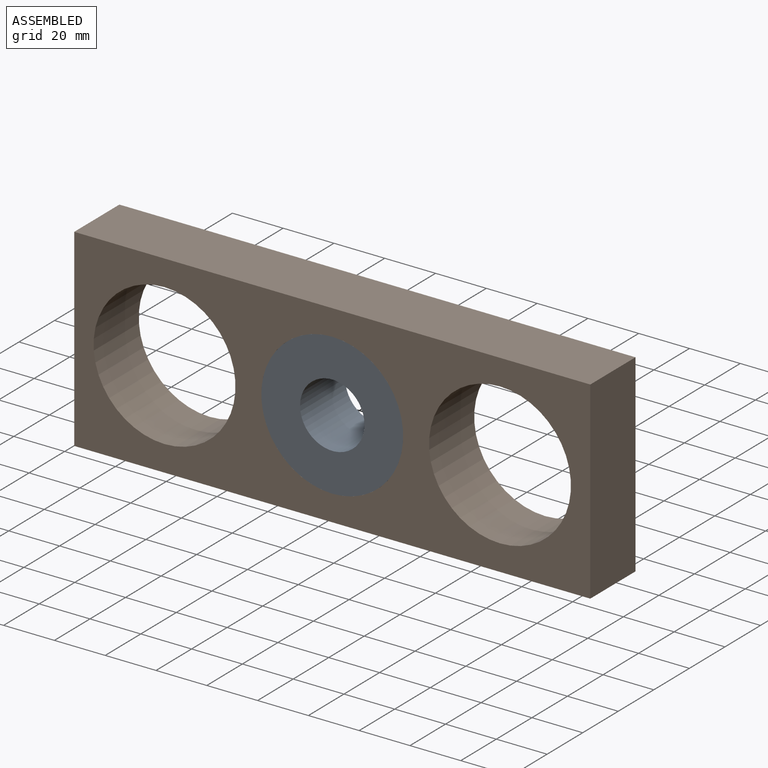
[diagram: assembled view]
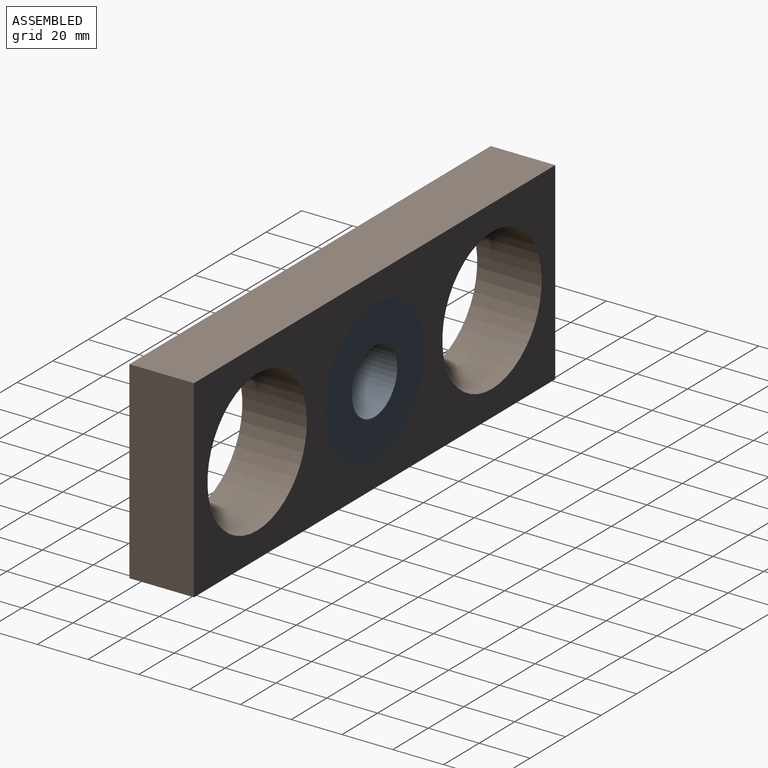
[diagram: assembled view, second angle]
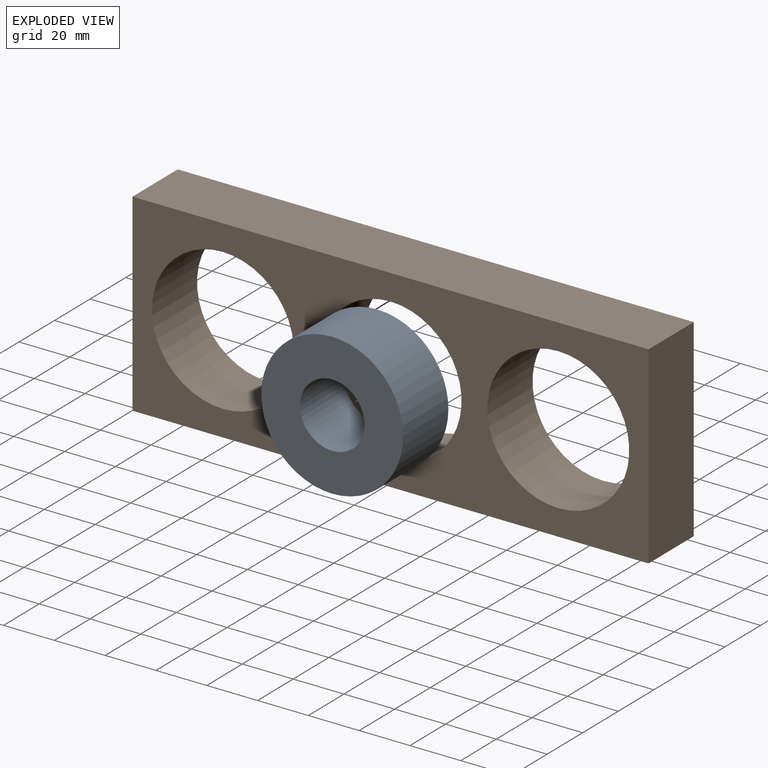
[diagram: exploded view]
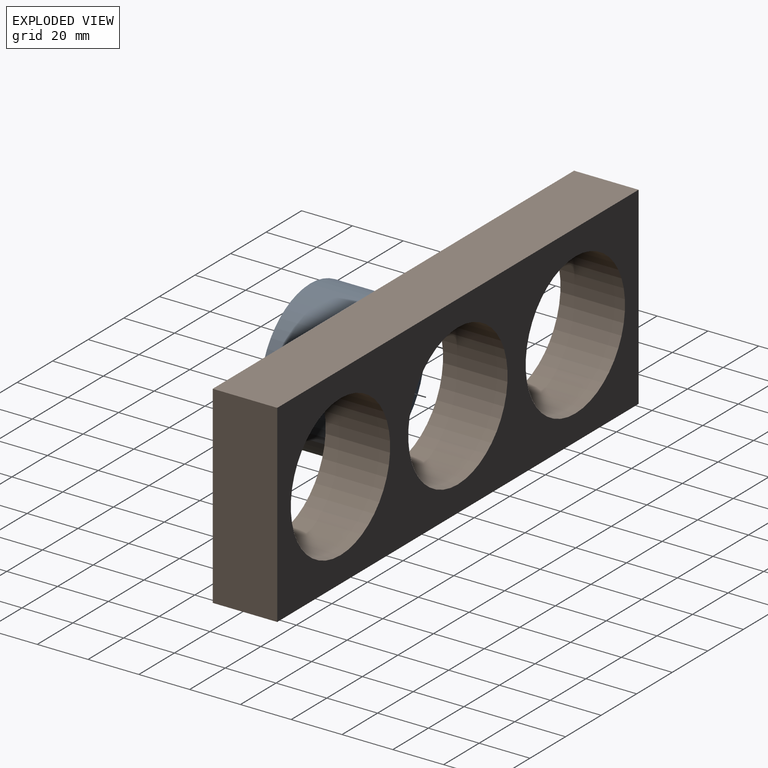
[diagram: exploded view, second angle]
ASSEMBLY  parts=2 mates=2
PART A: 4 faces, bbox 25.4x55.9x55.9 mm
  f0: cylinder r=12.7mm len=25.4mm, axis (-1,0,0), area 2026.8mm2, adj f1,f3
  f1: plane 55.88x55.88mm, normal (1,0,0), area 1945.8mm2, adj f0,f2
  f2: cylinder r=27.94mm len=55.88mm, axis (-1,0,0), area 4459mm2, adj f1,f3
  f3: plane 55.88x55.88mm, normal (-1,0,0), area 1945.8mm2, adj f0,f2
PART B: 9 faces, bbox 203.2x25.4x76.2 mm
  f0: plane 76.2x25.4mm, normal (1,0,0), area 1935.5mm2, adj f1,f5,f7,f8
  f1: plane 203.2x25.4mm, normal (0,0,1), area 5161.3mm2, adj f0,f2,f7,f8
  f2: plane 76.2x25.4mm, normal (-1,0,0), area 1935.5mm2, adj f1,f5,f7,f8
  f3: cylinder r=27.94mm len=55.88mm, axis (0,1,0), area 4459mm2, adj f7,f8
  f4: cylinder r=27.94mm len=55.88mm, axis (0,1,0), area 4459mm2, adj f7,f8
  f5: plane 203.2x25.4mm, normal (0,0,-1), area 5161.3mm2, adj f0,f2,f7,f8
  f6: cylinder r=27.94mm len=55.88mm, axis (0,1,0), area 4459mm2, adj f7,f8
  f7: plane 203.2x76.2mm, normal (0,-1,0), area 8126.4mm2, adj f0,f1,f2,f3,f4,f5,f6
  f8: plane 203.2x76.2mm, normal (0,1,0), area 8126.4mm2, adj f0,f1,f2,f3,f4,f5,f6
PLACE A rot(axis=(0.58,-0.58,-0.58),120deg) t=(-54.23,-27.85,-14.49)mm
PLACE B t=(-54.23,-15.15,-14.49)mm
MATE cylindrical A.f0 <-> B.f4  axis (0,1,0) through (-54.23,-27.85,-14.49)mm
MATE planar A.f0 <-> B.f4  axis (0,-1,0) through (-54.23,-40.55,-14.49)mm
